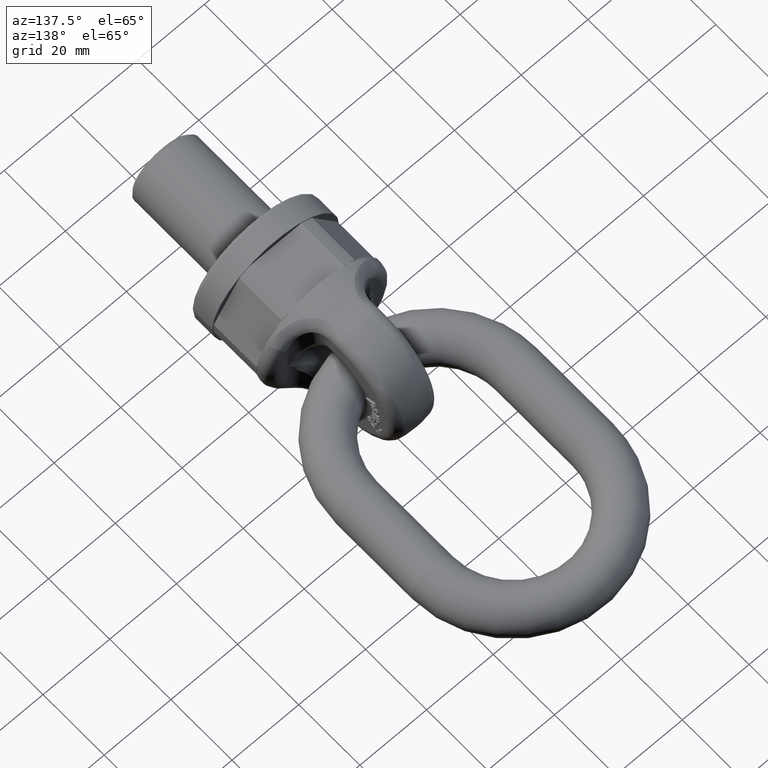
[diagram: clean part render]
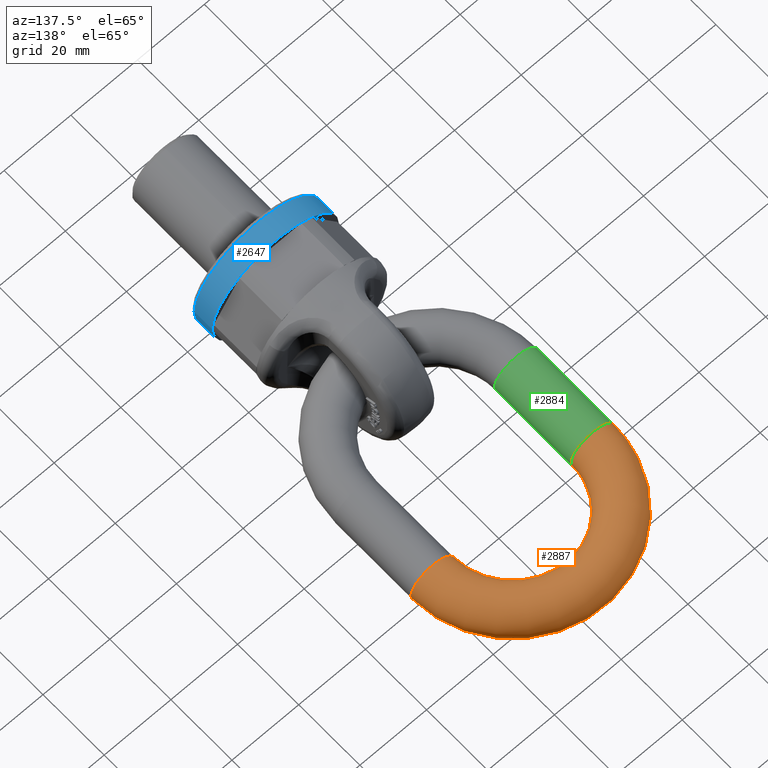
[diagram: same view with three faces highlighted in distinct colors, each labeled with its STEP entity id]
A machine part, auxiliary view with three faces highlighted in distinct colors.
Their STEP definitions:

[orange] entity #2887 — the highlighted toroidal blend (fillet) surface has major radius 24 mm and minor (blend) radius 6.5 mm.
#1805=TOROIDAL_SURFACE('',#5808,24.,6.5);
#2887=ADVANCED_FACE('',(#3063,#3064),#1805,.T.);
#3063=FACE_BOUND('',#3349,.T.);
#3064=FACE_BOUND('',#3350,.T.);
#3349=EDGE_LOOP('',(#4541));
#3350=EDGE_LOOP('',(#4542));
#4541=ORIENTED_EDGE('',*,*,#5536,.F.);
#4542=ORIENTED_EDGE('',*,*,#5534,.T.);
#4938=VERTEX_POINT('',#9728);
#4940=VERTEX_POINT('',#9734);
#5534=EDGE_CURVE('',#4938,#4938,#5600,.T.);
#5536=EDGE_CURVE('',#4940,#4940,#5602,.T.);
#5600=CIRCLE('',#5802,6.5);
#5602=CIRCLE('',#5806,6.5);
#5802=AXIS2_PLACEMENT_3D('',#9727,#6555,#6556);
#5806=AXIS2_PLACEMENT_3D('',#9733,#6563,#6564);
#5808=AXIS2_PLACEMENT_3D('',#9736,#6567,#6568);
#6555=DIRECTION('',(-1.01064309961486E-15,1.,0.));
#6556=DIRECTION('',(0.,0.,-1.));
#6563=DIRECTION('',(0.,-1.,0.));
#6564=DIRECTION('',(0.,0.,-1.));
#6567=DIRECTION('',(0.,0.,1.));
#6568=DIRECTION('',(1.,0.,0.));
#9727=CARTESIAN_POINT('',(-24.,84.5,0.));
#9728=CARTESIAN_POINT('',(-24.,84.5,-6.5));
#9733=CARTESIAN_POINT('',(24.,84.5,0.));
#9734=CARTESIAN_POINT('',(24.,84.5,-6.5));
#9736=CARTESIAN_POINT('',(1.73472347597681E-14,84.5,0.));

[blue] entity #2647 — the highlighted cylindrical surface (bore or boss wall) has radius 19 mm, axis along (0, -1, 0).
#2020=CYLINDRICAL_SURFACE('',#5616,19.);
#2647=ADVANCED_FACE('',(#2997,#2998),#2020,.T.);
#2997=FACE_BOUND('',#3069,.T.);
#2998=FACE_BOUND('',#3070,.T.);
#3069=EDGE_LOOP('',(#3366));
#3070=EDGE_LOOP('',(#3367));
#3366=ORIENTED_EDGE('',*,*,#4956,.T.);
#3367=ORIENTED_EDGE('',*,*,#4943,.T.);
#4545=VERTEX_POINT('',#6576);
#4558=VERTEX_POINT('',#6603);
#4943=EDGE_CURVE('',#4545,#4545,#5539,.T.);
#4956=EDGE_CURVE('',#4558,#4558,#5546,.T.);
#5539=CIRCLE('',#5607,19.);
#5546=CIRCLE('',#5615,19.);
#5607=AXIS2_PLACEMENT_3D('',#6575,#5817,#5818);
#5615=AXIS2_PLACEMENT_3D('',#6602,#5839,#5840);
#5616=AXIS2_PLACEMENT_3D('',#6604,#5841,#5842);
#5817=DIRECTION('',(3.82702124733548E-17,-1.,0.));
#5818=DIRECTION('',(1.,4.56506177888633E-17,0.));
#5839=DIRECTION('',(-3.82702124733548E-17,1.,0.));
#5840=DIRECTION('',(1.,3.42379633416475E-17,0.));
#5841=DIRECTION('',(3.82702124733548E-17,-1.,0.));
#5842=DIRECTION('',(1.,4.56506177888633E-17,0.));
#6575=CARTESIAN_POINT('',(-2.67891487313483E-16,7.,0.));
#6576=CARTESIAN_POINT('',(19.,7.,0.));
#6602=CARTESIAN_POINT('',(-3.82702124733548E-17,0.999999999999999,0.));
#6603=CARTESIAN_POINT('',(19.,1.,0.));
#6604=CARTESIAN_POINT('',(-2.67891487313483E-16,7.,0.));

[green] entity #2884 — the highlighted cylindrical surface (bore or boss wall) has radius 6.5 mm, axis along (0, 1, 0).
#2039=CYLINDRICAL_SURFACE('',#5803,6.5);
#2884=ADVANCED_FACE('',(#3057,#3058),#2039,.T.);
#3057=FACE_BOUND('',#3343,.T.);
#3058=FACE_BOUND('',#3344,.T.);
#3343=EDGE_LOOP('',(#4535));
#3344=EDGE_LOOP('',(#4536));
#4535=ORIENTED_EDGE('',*,*,#5533,.T.);
#4536=ORIENTED_EDGE('',*,*,#5534,.F.);
#4937=VERTEX_POINT('',#9726);
#4938=VERTEX_POINT('',#9728);
#5533=EDGE_CURVE('',#4937,#4937,#5599,.T.);
#5534=EDGE_CURVE('',#4938,#4938,#5600,.T.);
#5599=CIRCLE('',#5801,6.5);
#5600=CIRCLE('',#5802,6.5);
#5801=AXIS2_PLACEMENT_3D('',#9725,#6553,#6554);
#5802=AXIS2_PLACEMENT_3D('',#9727,#6555,#6556);
#5803=AXIS2_PLACEMENT_3D('',#9729,#6557,#6558);
#6553=DIRECTION('',(-1.01064309961486E-15,1.,0.));
#6554=DIRECTION('',(0.,0.,-1.));
#6555=DIRECTION('',(-1.01064309961486E-15,1.,0.));
#6556=DIRECTION('',(0.,0.,-1.));
#6557=DIRECTION('',(1.4210854715202E-16,1.,0.));
#6558=DIRECTION('',(-1.,0.,0.));
#9725=CARTESIAN_POINT('',(-24.,59.5,0.));
#9726=CARTESIAN_POINT('',(-24.,59.5,-6.5));
#9727=CARTESIAN_POINT('',(-24.,84.5,0.));
#9728=CARTESIAN_POINT('',(-24.,84.5,-6.5));
#9729=CARTESIAN_POINT('',(-24.,59.5,0.));